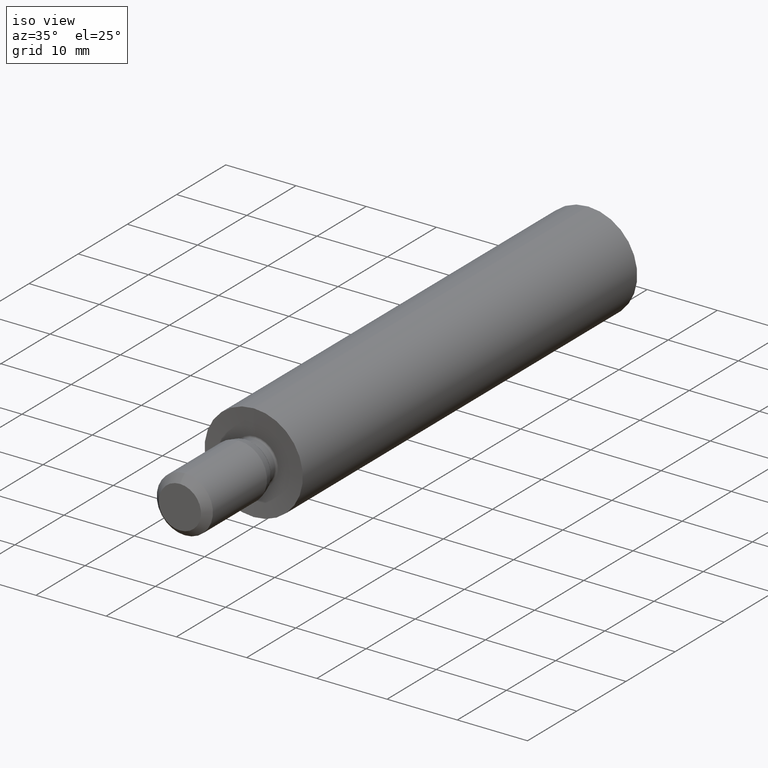
[diagram: clean part render]
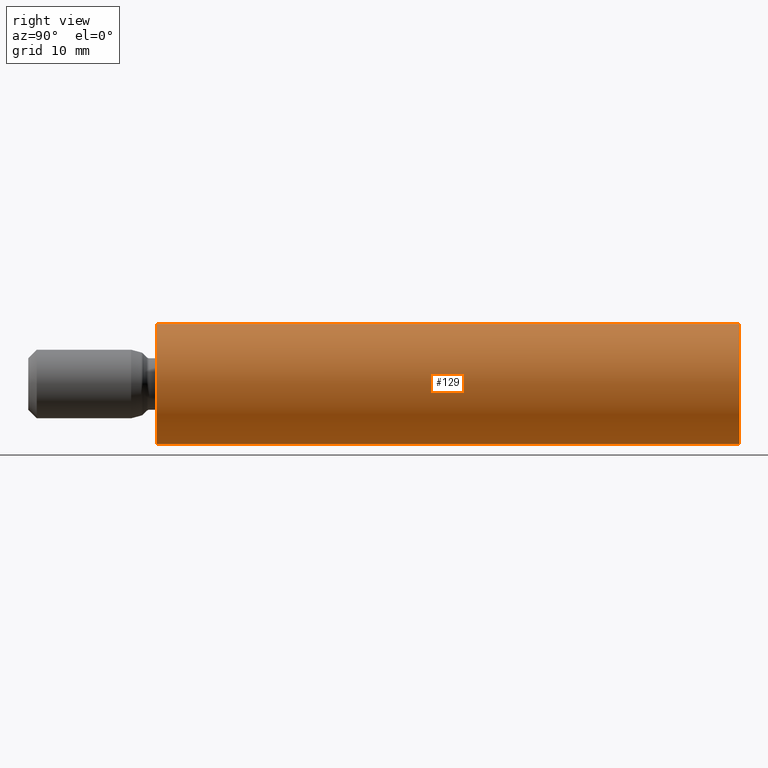
[diagram: tour spotlight — one face highlighted and labeled with its STEP entity id]
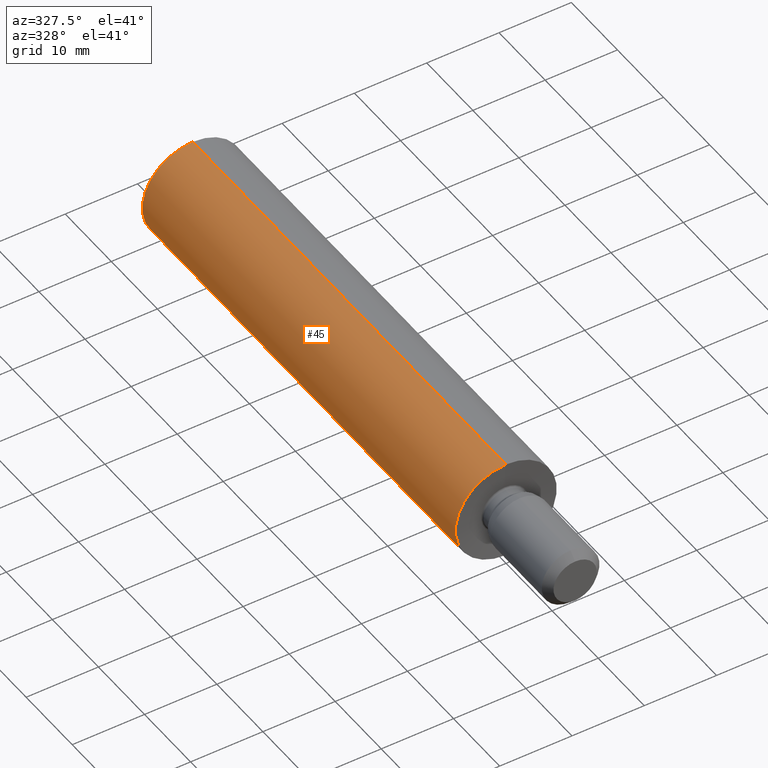
[diagram: tour spotlight — one face highlighted and labeled with its STEP entity id]
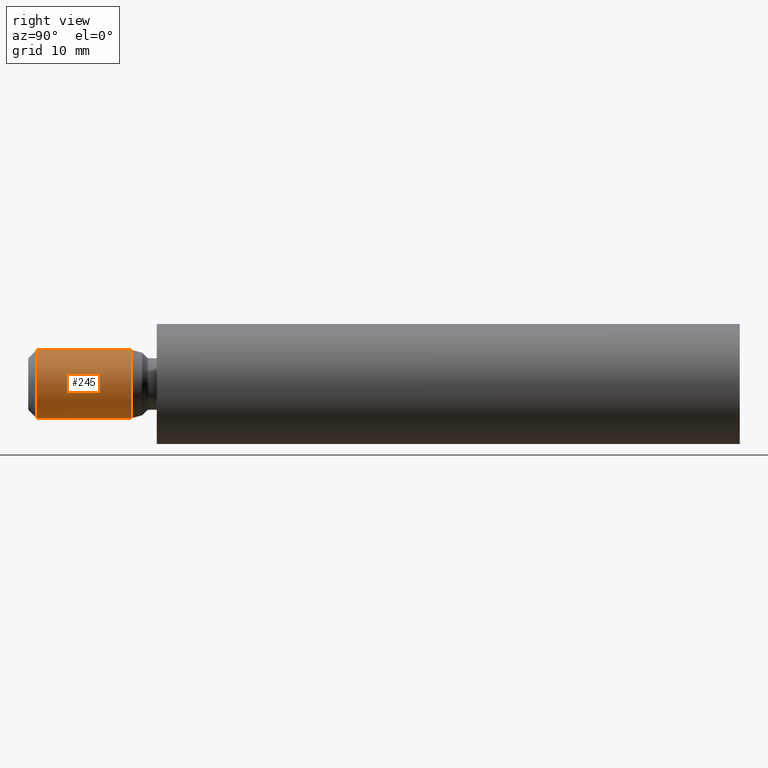
[diagram: tour spotlight — one face highlighted and labeled with its STEP entity id]
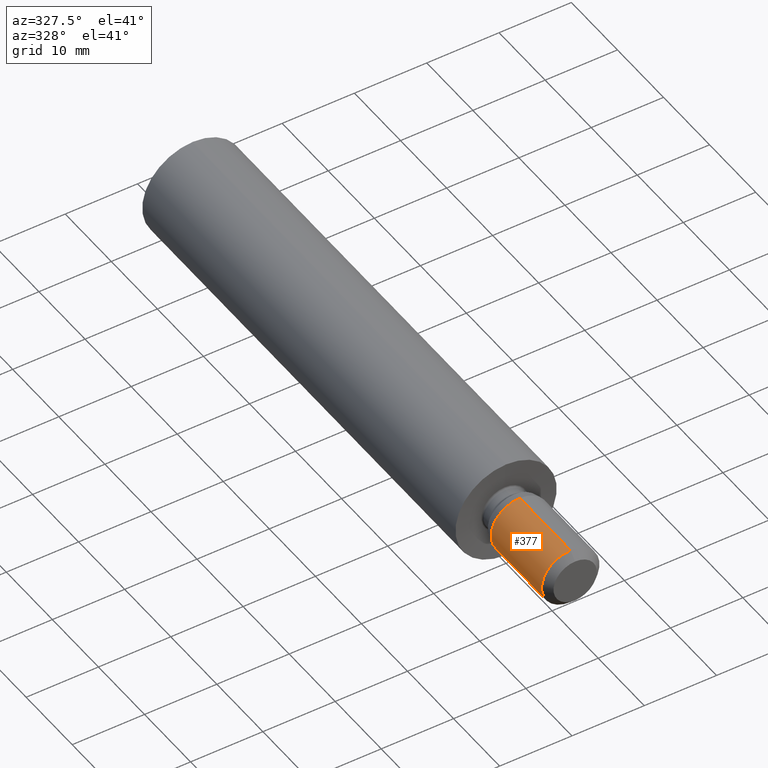
[diagram: tour spotlight — one face highlighted and labeled with its STEP entity id]
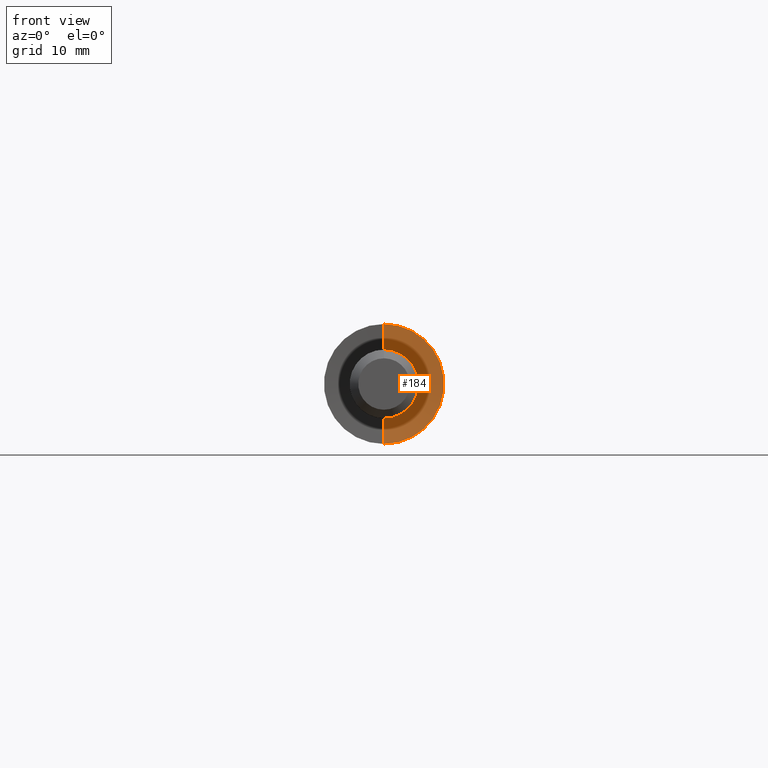
[diagram: tour spotlight — one face highlighted and labeled with its STEP entity id]
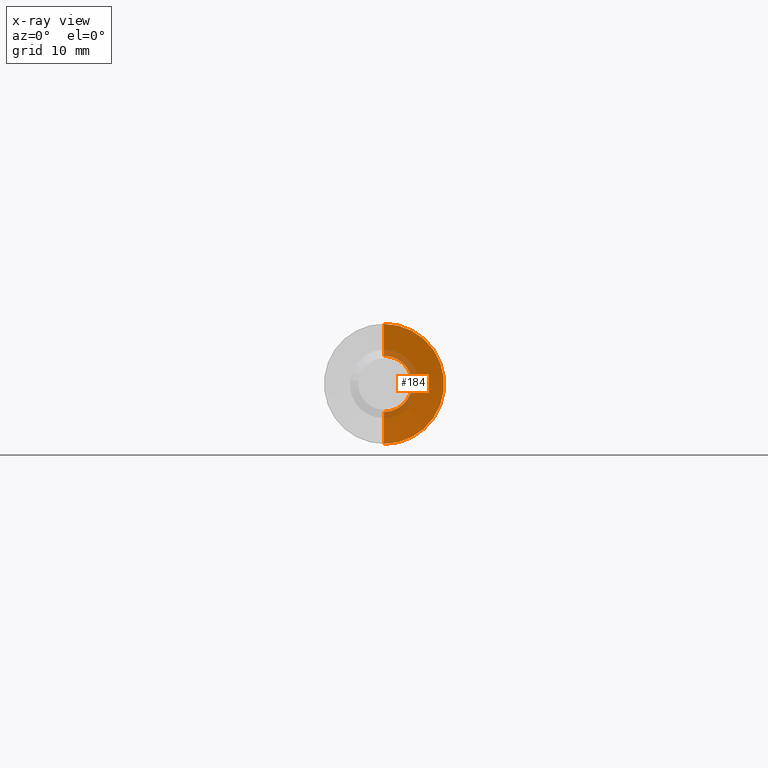
[diagram: x-ray of the same camera — body ghosted, this tour face saturated]
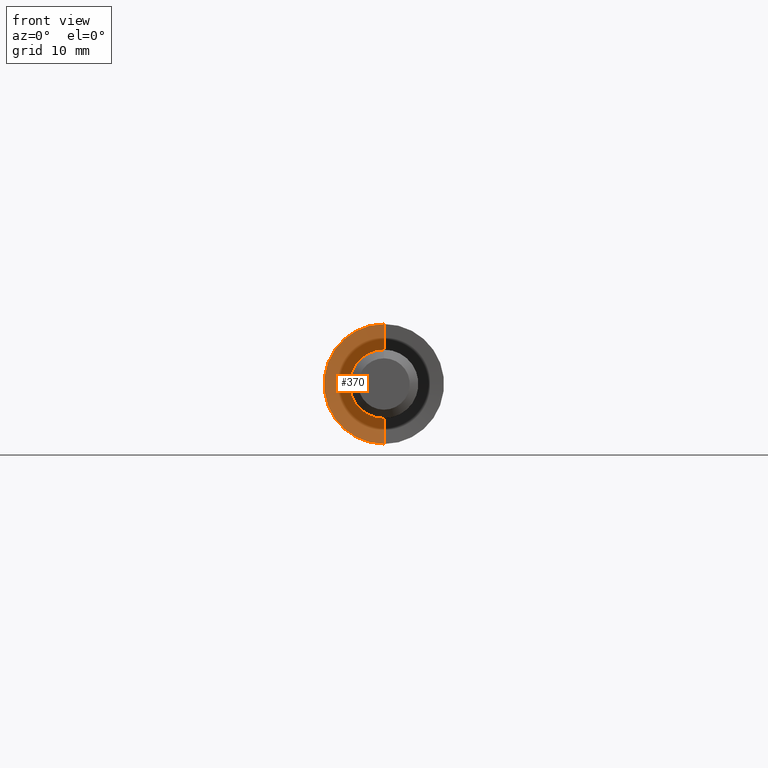
[diagram: tour spotlight — one face highlighted and labeled with its STEP entity id]
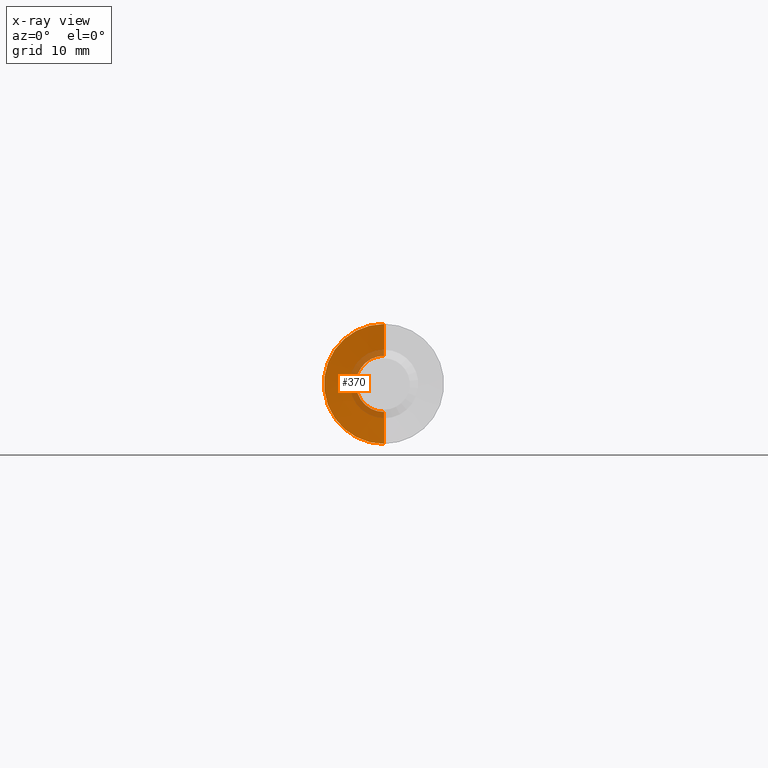
[diagram: x-ray of the same camera — body ghosted, this tour face saturated]
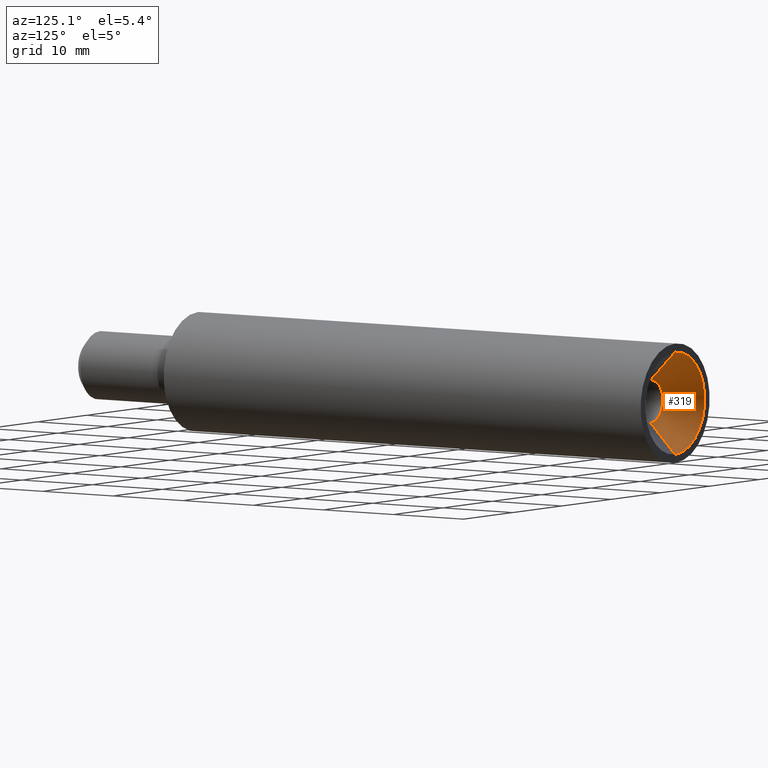
[diagram: tour spotlight — one face highlighted and labeled with its STEP entity id]
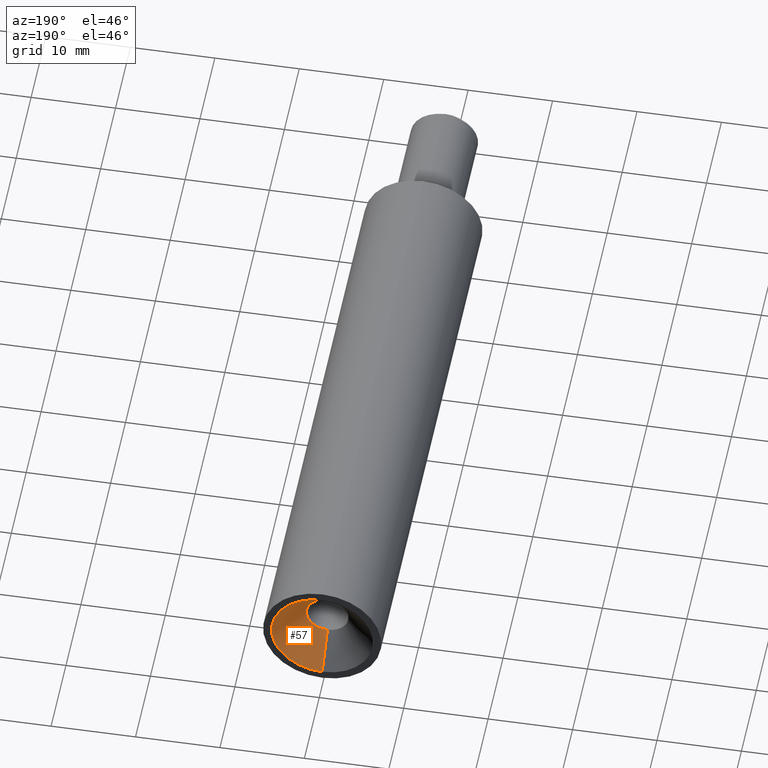
[diagram: tour spotlight — one face highlighted and labeled with its STEP entity id]
A machine part: a face-by-face anatomy tour. The part has 30 B-rep faces; the first image is the clean iso view, then the 8 largest visible faces are spotlighted one at a time (largest first), each with its STEP entity span.

Face 1 — right view, entity #129. In plain terms, the highlighted cylindrical surface (partial cylindrical patch) has radius 7 mm, axis along (-0, -1, -0).
Definition (entity closure, byte-faithful):
#5 = CIRCLE ( 'NONE', #180, 7.000000000000000000 ) ;
#41 = ORIENTED_EDGE ( 'NONE', *, *, #274, .F. ) ;
#53 = ORIENTED_EDGE ( 'NONE', *, *, #613, .T. ) ;
#71 = DIRECTION ( 'NONE',  ( -0.0000000000000000000, -1.000000000000000000, -0.0000000000000000000 ) ) ;
#77 = CARTESIAN_POINT ( 'NONE',  ( 0.0000000000000000000, 68.00000000000000000, 0.0000000000000000000 ) ) ;
#79 = EDGE_CURVE ( 'NONE', #233, #333, #322, .T. ) ;
#80 = CARTESIAN_POINT ( 'NONE',  ( 0.0000000000000000000, 68.00000000000000000, -7.000000000000000000 ) ) ;
#117 = EDGE_LOOP ( 'NONE', ( #161, #53, #41, #226 ) ) ;
#129 = ADVANCED_FACE ( 'NONE', ( #403 ), #745, .T. ) ;
#134 = CARTESIAN_POINT ( 'NONE',  ( 8.572527594031473200E-016, 68.00000000000000000, 7.000000000000000000 ) ) ;
#159 = CARTESIAN_POINT ( 'NONE',  ( 0.0000000000000000000, -9.860761315262647600E-029, 0.0000000000000000000 ) ) ;
#161 = ORIENTED_EDGE ( 'NONE', *, *, #597, .T. ) ;
#180 = AXIS2_PLACEMENT_3D ( 'NONE', #77, #201, #260 ) ;
#201 = DIRECTION ( 'NONE',  ( -0.0000000000000000000, -1.000000000000000000, -0.0000000000000000000 ) ) ;
#221 = DIRECTION ( 'NONE',  ( 0.0000000000000000000, 0.0000000000000000000, -1.000000000000000000 ) ) ;
#226 = ORIENTED_EDGE ( 'NONE', *, *, #79, .F. ) ;
#233 = VERTEX_POINT ( 'NONE', #80 ) ;
#260 = DIRECTION ( 'NONE',  ( 0.0000000000000000000, 0.0000000000000000000, -1.000000000000000000 ) ) ;
#268 = VECTOR ( 'NONE', #718, 1000.000000000000000 ) ;
#274 = EDGE_CURVE ( 'NONE', #333, #406, #401, .T. ) ;
#300 = CARTESIAN_POINT ( 'NONE',  ( 0.0000000000000000000, -9.860761315262647600E-029, -6.999999999999997300 ) ) ;
#322 = LINE ( 'NONE', #397, #268 ) ;
#333 = VERTEX_POINT ( 'NONE', #300 ) ;
#348 = AXIS2_PLACEMENT_3D ( 'NONE', #601, #612, #785 ) ;
#397 = CARTESIAN_POINT ( 'NONE',  ( 0.0000000000000000000, 0.0000000000000000000, -7.000000000000000000 ) ) ;
#401 = CIRCLE ( 'NONE', #631, 7.000000000000000000 ) ;
#403 = FACE_OUTER_BOUND ( 'NONE', #117, .T. ) ;
#406 = VERTEX_POINT ( 'NONE', #682 ) ;
#417 = LINE ( 'NONE', #593, #674 ) ;
#531 = VERTEX_POINT ( 'NONE', #134 ) ;
#593 = CARTESIAN_POINT ( 'NONE',  ( 8.572527594031473200E-016, 0.0000000000000000000, 7.000000000000000000 ) ) ;
#597 = EDGE_CURVE ( 'NONE', #233, #531, #5, .T. ) ;
#601 = CARTESIAN_POINT ( 'NONE',  ( 0.0000000000000000000, 0.0000000000000000000, 0.0000000000000000000 ) ) ;
#606 = DIRECTION ( 'NONE',  ( -0.0000000000000000000, -1.000000000000000000, -0.0000000000000000000 ) ) ;
#612 = DIRECTION ( 'NONE',  ( -0.0000000000000000000, -1.000000000000000000, -0.0000000000000000000 ) ) ;
#613 = EDGE_CURVE ( 'NONE', #531, #406, #417, .T. ) ;
#631 = AXIS2_PLACEMENT_3D ( 'NONE', #159, #606, #221 ) ;
#674 = VECTOR ( 'NONE', #71, 1000.000000000000000 ) ;
#682 = CARTESIAN_POINT ( 'NONE',  ( 8.572527594031469200E-016, -9.860761315262647600E-029, 6.999999999999997300 ) ) ;
#718 = DIRECTION ( 'NONE',  ( -0.0000000000000000000, -1.000000000000000000, -0.0000000000000000000 ) ) ;
#745 = CYLINDRICAL_SURFACE ( 'NONE', #348, 7.000000000000000000 ) ;
#785 = DIRECTION ( 'NONE',  ( 0.0000000000000000000, 0.0000000000000000000, -1.000000000000000000 ) ) ;

Face 2 — auxiliary view, entity #45. In plain terms, the highlighted cylindrical surface (partial cylindrical patch) has radius 7 mm, axis along (-0, -1, -0).
Definition (entity closure, byte-faithful):
#43 = CARTESIAN_POINT ( 'NONE',  ( 0.0000000000000000000, -9.860761315262647600E-029, 0.0000000000000000000 ) ) ;
#45 = ADVANCED_FACE ( 'NONE', ( #443 ), #232, .T. ) ;
#71 = DIRECTION ( 'NONE',  ( -0.0000000000000000000, -1.000000000000000000, -0.0000000000000000000 ) ) ;
#79 = EDGE_CURVE ( 'NONE', #233, #333, #322, .T. ) ;
#80 = CARTESIAN_POINT ( 'NONE',  ( 0.0000000000000000000, 68.00000000000000000, -7.000000000000000000 ) ) ;
#123 = DIRECTION ( 'NONE',  ( -0.0000000000000000000, -1.000000000000000000, -0.0000000000000000000 ) ) ;
#134 = CARTESIAN_POINT ( 'NONE',  ( 8.572527594031473200E-016, 68.00000000000000000, 7.000000000000000000 ) ) ;
#186 = DIRECTION ( 'NONE',  ( 0.0000000000000000000, 0.0000000000000000000, -1.000000000000000000 ) ) ;
#232 = CYLINDRICAL_SURFACE ( 'NONE', #236, 7.000000000000000000 ) ;
#233 = VERTEX_POINT ( 'NONE', #80 ) ;
#236 = AXIS2_PLACEMENT_3D ( 'NONE', #646, #589, #777 ) ;
#247 = CIRCLE ( 'NONE', #788, 7.000000000000000000 ) ;
#252 = ORIENTED_EDGE ( 'NONE', *, *, #613, .F. ) ;
#268 = VECTOR ( 'NONE', #718, 1000.000000000000000 ) ;
#272 = ORIENTED_EDGE ( 'NONE', *, *, #491, .T. ) ;
#300 = CARTESIAN_POINT ( 'NONE',  ( 0.0000000000000000000, -9.860761315262647600E-029, -6.999999999999997300 ) ) ;
#321 = CARTESIAN_POINT ( 'NONE',  ( 0.0000000000000000000, 68.00000000000000000, 0.0000000000000000000 ) ) ;
#322 = LINE ( 'NONE', #397, #268 ) ;
#332 = ORIENTED_EDGE ( 'NONE', *, *, #446, .F. ) ;
#333 = VERTEX_POINT ( 'NONE', #300 ) ;
#397 = CARTESIAN_POINT ( 'NONE',  ( 0.0000000000000000000, 0.0000000000000000000, -7.000000000000000000 ) ) ;
#406 = VERTEX_POINT ( 'NONE', #682 ) ;
#417 = LINE ( 'NONE', #593, #674 ) ;
#443 = FACE_OUTER_BOUND ( 'NONE', #679, .T. ) ;
#446 = EDGE_CURVE ( 'NONE', #406, #333, #247, .T. ) ;
#484 = ORIENTED_EDGE ( 'NONE', *, *, #79, .T. ) ;
#491 = EDGE_CURVE ( 'NONE', #531, #233, #815, .T. ) ;
#511 = AXIS2_PLACEMENT_3D ( 'NONE', #321, #123, #574 ) ;
#531 = VERTEX_POINT ( 'NONE', #134 ) ;
#574 = DIRECTION ( 'NONE',  ( 0.0000000000000000000, 0.0000000000000000000, -1.000000000000000000 ) ) ;
#589 = DIRECTION ( 'NONE',  ( -0.0000000000000000000, -1.000000000000000000, -0.0000000000000000000 ) ) ;
#593 = CARTESIAN_POINT ( 'NONE',  ( 8.572527594031473200E-016, 0.0000000000000000000, 7.000000000000000000 ) ) ;
#613 = EDGE_CURVE ( 'NONE', #531, #406, #417, .T. ) ;
#646 = CARTESIAN_POINT ( 'NONE',  ( 0.0000000000000000000, 0.0000000000000000000, 0.0000000000000000000 ) ) ;
#674 = VECTOR ( 'NONE', #71, 1000.000000000000000 ) ;
#679 = EDGE_LOOP ( 'NONE', ( #252, #272, #484, #332 ) ) ;
#682 = CARTESIAN_POINT ( 'NONE',  ( 8.572527594031469200E-016, -9.860761315262647600E-029, 6.999999999999997300 ) ) ;
#708 = DIRECTION ( 'NONE',  ( -0.0000000000000000000, -1.000000000000000000, -0.0000000000000000000 ) ) ;
#718 = DIRECTION ( 'NONE',  ( -0.0000000000000000000, -1.000000000000000000, -0.0000000000000000000 ) ) ;
#777 = DIRECTION ( 'NONE',  ( 0.0000000000000000000, 0.0000000000000000000, -1.000000000000000000 ) ) ;
#788 = AXIS2_PLACEMENT_3D ( 'NONE', #43, #708, #186 ) ;
#815 = CIRCLE ( 'NONE', #511, 7.000000000000000000 ) ;

Face 3 — right view, entity #245. In plain terms, the highlighted cylindrical surface (edge-blend (fillet) strip) has radius 4 mm, axis along (-0, -1, -0).
Definition (entity closure, byte-faithful):
#126 = CIRCLE ( 'NONE', #187, 4.000000000000000000 ) ;
#131 = EDGE_CURVE ( 'NONE', #461, #160, #248, .T. ) ;
#152 = DIRECTION ( 'NONE',  ( -0.0000000000000000000, -1.000000000000000000, -0.0000000000000000000 ) ) ;
#160 = VERTEX_POINT ( 'NONE', #543 ) ;
#166 = ORIENTED_EDGE ( 'NONE', *, *, #131, .T. ) ;
#168 = DIRECTION ( 'NONE',  ( 0.0000000000000000000, 0.0000000000000000000, -1.000000000000000000 ) ) ;
#174 = CARTESIAN_POINT ( 'NONE',  ( 0.0000000000000000000, -13.99999999999999800, 0.0000000000000000000 ) ) ;
#181 = AXIS2_PLACEMENT_3D ( 'NONE', #213, #739, #673 ) ;
#187 = AXIS2_PLACEMENT_3D ( 'NONE', #174, #565, #168 ) ;
#213 = CARTESIAN_POINT ( 'NONE',  ( 0.0000000000000000000, 0.0000000000000000000, 0.0000000000000000000 ) ) ;
#240 = EDGE_LOOP ( 'NONE', ( #513, #166, #374, #542 ) ) ;
#244 = EDGE_CURVE ( 'NONE', #793, #762, #790, .T. ) ;
#245 = ADVANCED_FACE ( 'NONE', ( #380 ), #724, .T. ) ;
#248 = LINE ( 'NONE', #732, #576 ) ;
#317 = CARTESIAN_POINT ( 'NONE',  ( 4.898587196589412800E-016, -3.000000000000000000, 4.000000000000000000 ) ) ;
#334 = EDGE_CURVE ( 'NONE', #762, #160, #126, .T. ) ;
#356 = EDGE_CURVE ( 'NONE', #793, #461, #505, .T. ) ;
#363 = AXIS2_PLACEMENT_3D ( 'NONE', #625, #554, #434 ) ;
#374 = ORIENTED_EDGE ( 'NONE', *, *, #334, .F. ) ;
#380 = FACE_OUTER_BOUND ( 'NONE', #240, .T. ) ;
#420 = CARTESIAN_POINT ( 'NONE',  ( 4.898587196589412800E-016, -13.99999999999999800, -4.000000000000000000 ) ) ;
#434 = DIRECTION ( 'NONE',  ( 0.0000000000000000000, 0.0000000000000000000, -1.000000000000000000 ) ) ;
#461 = VERTEX_POINT ( 'NONE', #317 ) ;
#496 = VECTOR ( 'NONE', #152, 1000.000000000000000 ) ;
#505 = CIRCLE ( 'NONE', #363, 4.000000000000000000 ) ;
#513 = ORIENTED_EDGE ( 'NONE', *, *, #356, .T. ) ;
#535 = CARTESIAN_POINT ( 'NONE',  ( 0.0000000000000000000, 0.0000000000000000000, -4.000000000000000000 ) ) ;
#542 = ORIENTED_EDGE ( 'NONE', *, *, #244, .F. ) ;
#543 = CARTESIAN_POINT ( 'NONE',  ( 0.0000000000000000000, -13.99999999999999800, 4.000000000000000000 ) ) ;
#545 = DIRECTION ( 'NONE',  ( -0.0000000000000000000, -1.000000000000000000, -0.0000000000000000000 ) ) ;
#554 = DIRECTION ( 'NONE',  ( -0.0000000000000000000, -1.000000000000000000, -0.0000000000000000000 ) ) ;
#565 = DIRECTION ( 'NONE',  ( -0.0000000000000000000, -1.000000000000000000, -0.0000000000000000000 ) ) ;
#576 = VECTOR ( 'NONE', #545, 1000.000000000000000 ) ;
#625 = CARTESIAN_POINT ( 'NONE',  ( 0.0000000000000000000, -3.000000000000000000, 0.0000000000000000000 ) ) ;
#673 = DIRECTION ( 'NONE',  ( 0.0000000000000000000, 0.0000000000000000000, -1.000000000000000000 ) ) ;
#724 = CYLINDRICAL_SURFACE ( 'NONE', #181, 4.000000000000000000 ) ;
#732 = CARTESIAN_POINT ( 'NONE',  ( 4.898587196589412800E-016, 0.0000000000000000000, 4.000000000000000000 ) ) ;
#739 = DIRECTION ( 'NONE',  ( -0.0000000000000000000, -1.000000000000000000, -0.0000000000000000000 ) ) ;
#762 = VERTEX_POINT ( 'NONE', #420 ) ;
#790 = LINE ( 'NONE', #535, #496 ) ;
#793 = VERTEX_POINT ( 'NONE', #794 ) ;
#794 = CARTESIAN_POINT ( 'NONE',  ( 0.0000000000000000000, -3.000000000000000000, -4.000000000000000000 ) ) ;

Face 4 — auxiliary view, entity #377. In plain terms, the highlighted cylindrical surface (edge-blend (fillet) strip) has radius 4 mm, axis along (-0, -1, -0).
Definition (entity closure, byte-faithful):
#20 = EDGE_LOOP ( 'NONE', ( #769, #169, #727, #355 ) ) ;
#75 = CARTESIAN_POINT ( 'NONE',  ( 0.0000000000000000000, -13.99999999999999800, 0.0000000000000000000 ) ) ;
#103 = DIRECTION ( 'NONE',  ( 0.0000000000000000000, 0.0000000000000000000, -1.000000000000000000 ) ) ;
#111 = CARTESIAN_POINT ( 'NONE',  ( 0.0000000000000000000, 0.0000000000000000000, 0.0000000000000000000 ) ) ;
#112 = EDGE_CURVE ( 'NONE', #160, #762, #569, .T. ) ;
#131 = EDGE_CURVE ( 'NONE', #461, #160, #248, .T. ) ;
#133 = CARTESIAN_POINT ( 'NONE',  ( 0.0000000000000000000, -3.000000000000000000, 0.0000000000000000000 ) ) ;
#152 = DIRECTION ( 'NONE',  ( -0.0000000000000000000, -1.000000000000000000, -0.0000000000000000000 ) ) ;
#158 = AXIS2_PLACEMENT_3D ( 'NONE', #75, #650, #257 ) ;
#160 = VERTEX_POINT ( 'NONE', #543 ) ;
#169 = ORIENTED_EDGE ( 'NONE', *, *, #476, .T. ) ;
#212 = FACE_OUTER_BOUND ( 'NONE', #20, .T. ) ;
#244 = EDGE_CURVE ( 'NONE', #793, #762, #790, .T. ) ;
#248 = LINE ( 'NONE', #732, #576 ) ;
#253 = DIRECTION ( 'NONE',  ( -0.0000000000000000000, -1.000000000000000000, -0.0000000000000000000 ) ) ;
#257 = DIRECTION ( 'NONE',  ( 0.0000000000000000000, 0.0000000000000000000, -1.000000000000000000 ) ) ;
#317 = CARTESIAN_POINT ( 'NONE',  ( 4.898587196589412800E-016, -3.000000000000000000, 4.000000000000000000 ) ) ;
#355 = ORIENTED_EDGE ( 'NONE', *, *, #112, .F. ) ;
#377 = ADVANCED_FACE ( 'NONE', ( #212 ), #457, .T. ) ;
#420 = CARTESIAN_POINT ( 'NONE',  ( 4.898587196589412800E-016, -13.99999999999999800, -4.000000000000000000 ) ) ;
#456 = AXIS2_PLACEMENT_3D ( 'NONE', #133, #253, #703 ) ;
#457 = CYLINDRICAL_SURFACE ( 'NONE', #750, 4.000000000000000000 ) ;
#461 = VERTEX_POINT ( 'NONE', #317 ) ;
#476 = EDGE_CURVE ( 'NONE', #461, #793, #528, .T. ) ;
#496 = VECTOR ( 'NONE', #152, 1000.000000000000000 ) ;
#500 = DIRECTION ( 'NONE',  ( -0.0000000000000000000, -1.000000000000000000, -0.0000000000000000000 ) ) ;
#528 = CIRCLE ( 'NONE', #456, 4.000000000000000000 ) ;
#535 = CARTESIAN_POINT ( 'NONE',  ( 0.0000000000000000000, 0.0000000000000000000, -4.000000000000000000 ) ) ;
#543 = CARTESIAN_POINT ( 'NONE',  ( 0.0000000000000000000, -13.99999999999999800, 4.000000000000000000 ) ) ;
#545 = DIRECTION ( 'NONE',  ( -0.0000000000000000000, -1.000000000000000000, -0.0000000000000000000 ) ) ;
#569 = CIRCLE ( 'NONE', #158, 4.000000000000000000 ) ;
#576 = VECTOR ( 'NONE', #545, 1000.000000000000000 ) ;
#650 = DIRECTION ( 'NONE',  ( -0.0000000000000000000, -1.000000000000000000, -0.0000000000000000000 ) ) ;
#703 = DIRECTION ( 'NONE',  ( 0.0000000000000000000, 0.0000000000000000000, -1.000000000000000000 ) ) ;
#727 = ORIENTED_EDGE ( 'NONE', *, *, #244, .T. ) ;
#732 = CARTESIAN_POINT ( 'NONE',  ( 4.898587196589412800E-016, 0.0000000000000000000, 4.000000000000000000 ) ) ;
#750 = AXIS2_PLACEMENT_3D ( 'NONE', #111, #500, #103 ) ;
#762 = VERTEX_POINT ( 'NONE', #420 ) ;
#769 = ORIENTED_EDGE ( 'NONE', *, *, #131, .F. ) ;
#790 = LINE ( 'NONE', #535, #496 ) ;
#793 = VERTEX_POINT ( 'NONE', #794 ) ;
#794 = CARTESIAN_POINT ( 'NONE',  ( 0.0000000000000000000, -3.000000000000000000, -4.000000000000000000 ) ) ;

Face 5 — front view, entity #184. An x-ray twin of the same camera follows (body ghosted, this face saturated) — the face is partly hidden behind the body. In plain terms, the highlighted conical surface has half-angle 85 deg.
Definition (entity closure, byte-faithful):
#13 = DIRECTION ( 'NONE',  ( 0.0000000000000000000, -0.08715574274765149100, -0.9961946980917461000 ) ) ;
#19 = CARTESIAN_POINT ( 'NONE',  ( 4.006785847574703800E-016, 0.3261762033592892100, 3.271788935686913200 ) ) ;
#37 = AXIS2_PLACEMENT_3D ( 'NONE', #792, #787, #278 ) ;
#159 = CARTESIAN_POINT ( 'NONE',  ( 0.0000000000000000000, -9.860761315262647600E-029, 0.0000000000000000000 ) ) ;
#176 = CIRCLE ( 'NONE', #220, 3.271788935686913200 ) ;
#184 = ADVANCED_FACE ( 'NONE', ( #791 ), #702, .F. ) ;
#217 = ORIENTED_EDGE ( 'NONE', *, *, #796, .F. ) ;
#220 = AXIS2_PLACEMENT_3D ( 'NONE', #663, #562, #615 ) ;
#221 = DIRECTION ( 'NONE',  ( 0.0000000000000000000, 0.0000000000000000000, -1.000000000000000000 ) ) ;
#228 = DIRECTION ( 'NONE',  ( 1.219986648345620700E-016, -0.08715574274765149100, 0.9961946980917461000 ) ) ;
#258 = ORIENTED_EDGE ( 'NONE', *, *, #274, .T. ) ;
#274 = EDGE_CURVE ( 'NONE', #333, #406, #401, .T. ) ;
#278 = DIRECTION ( 'NONE',  ( 0.0000000000000000000, 0.0000000000000000000, -1.000000000000000000 ) ) ;
#300 = CARTESIAN_POINT ( 'NONE',  ( 0.0000000000000000000, -9.860761315262647600E-029, -6.999999999999997300 ) ) ;
#309 = EDGE_CURVE ( 'NONE', #696, #406, #619, .T. ) ;
#333 = VERTEX_POINT ( 'NONE', #300 ) ;
#342 = EDGE_LOOP ( 'NONE', ( #668, #217, #811, #258 ) ) ;
#344 = CARTESIAN_POINT ( 'NONE',  ( 0.0000000000000000000, 0.3261762033592892100, -3.271788935686913200 ) ) ;
#400 = VECTOR ( 'NONE', #13, 1000.000000000000000 ) ;
#401 = CIRCLE ( 'NONE', #631, 7.000000000000000000 ) ;
#406 = VERTEX_POINT ( 'NONE', #682 ) ;
#475 = CARTESIAN_POINT ( 'NONE',  ( 0.0000000000000000000, 0.3261762033592892100, -3.271788935686914100 ) ) ;
#562 = DIRECTION ( 'NONE',  ( -0.0000000000000000000, -1.000000000000000000, -0.0000000000000000000 ) ) ;
#606 = DIRECTION ( 'NONE',  ( -0.0000000000000000000, -1.000000000000000000, -0.0000000000000000000 ) ) ;
#615 = DIRECTION ( 'NONE',  ( 0.0000000000000000000, 0.0000000000000000000, -1.000000000000000000 ) ) ;
#619 = LINE ( 'NONE', #19, #825 ) ;
#631 = AXIS2_PLACEMENT_3D ( 'NONE', #159, #606, #221 ) ;
#633 = LINE ( 'NONE', #344, #400 ) ;
#663 = CARTESIAN_POINT ( 'NONE',  ( 0.0000000000000000000, 0.3261762033592892100, 0.0000000000000000000 ) ) ;
#668 = ORIENTED_EDGE ( 'NONE', *, *, #309, .F. ) ;
#682 = CARTESIAN_POINT ( 'NONE',  ( 8.572527594031469200E-016, -9.860761315262647600E-029, 6.999999999999997300 ) ) ;
#696 = VERTEX_POINT ( 'NONE', #728 ) ;
#697 = EDGE_CURVE ( 'NONE', #766, #333, #633, .T. ) ;
#702 = CONICAL_SURFACE ( 'NONE', #37, 3.271788935686913200, 1.483529864195186800 ) ;
#728 = CARTESIAN_POINT ( 'NONE',  ( 4.006785847574704800E-016, 0.3261762033592892100, 3.271788935686914100 ) ) ;
#766 = VERTEX_POINT ( 'NONE', #475 ) ;
#787 = DIRECTION ( 'NONE',  ( -0.0000000000000000000, -1.000000000000000000, -0.0000000000000000000 ) ) ;
#791 = FACE_OUTER_BOUND ( 'NONE', #342, .T. ) ;
#792 = CARTESIAN_POINT ( 'NONE',  ( 0.0000000000000000000, 0.3261762033592892100, 0.0000000000000000000 ) ) ;
#796 = EDGE_CURVE ( 'NONE', #766, #696, #176, .T. ) ;
#811 = ORIENTED_EDGE ( 'NONE', *, *, #697, .T. ) ;
#825 = VECTOR ( 'NONE', #228, 1000.000000000000000 ) ;

Face 6 — front view, entity #370. An x-ray twin of the same camera follows (body ghosted, this face saturated) — the face is partly hidden behind the body. In plain terms, the highlighted conical surface has half-angle 85 deg.
Definition (entity closure, byte-faithful):
#13 = DIRECTION ( 'NONE',  ( 0.0000000000000000000, -0.08715574274765149100, -0.9961946980917461000 ) ) ;
#19 = CARTESIAN_POINT ( 'NONE',  ( 4.006785847574703800E-016, 0.3261762033592892100, 3.271788935686913200 ) ) ;
#43 = CARTESIAN_POINT ( 'NONE',  ( 0.0000000000000000000, -9.860761315262647600E-029, 0.0000000000000000000 ) ) ;
#61 = DIRECTION ( 'NONE',  ( 0.0000000000000000000, 0.0000000000000000000, -1.000000000000000000 ) ) ;
#64 = EDGE_CURVE ( 'NONE', #696, #766, #810, .T. ) ;
#69 = ORIENTED_EDGE ( 'NONE', *, *, #446, .T. ) ;
#92 = ORIENTED_EDGE ( 'NONE', *, *, #697, .F. ) ;
#93 = AXIS2_PLACEMENT_3D ( 'NONE', #596, #394, #61 ) ;
#186 = DIRECTION ( 'NONE',  ( 0.0000000000000000000, 0.0000000000000000000, -1.000000000000000000 ) ) ;
#202 = AXIS2_PLACEMENT_3D ( 'NONE', #744, #492, #803 ) ;
#228 = DIRECTION ( 'NONE',  ( 1.219986648345620700E-016, -0.08715574274765149100, 0.9961946980917461000 ) ) ;
#247 = CIRCLE ( 'NONE', #788, 7.000000000000000000 ) ;
#300 = CARTESIAN_POINT ( 'NONE',  ( 0.0000000000000000000, -9.860761315262647600E-029, -6.999999999999997300 ) ) ;
#309 = EDGE_CURVE ( 'NONE', #696, #406, #619, .T. ) ;
#333 = VERTEX_POINT ( 'NONE', #300 ) ;
#344 = CARTESIAN_POINT ( 'NONE',  ( 0.0000000000000000000, 0.3261762033592892100, -3.271788935686913200 ) ) ;
#370 = ADVANCED_FACE ( 'NONE', ( #782 ), #450, .F. ) ;
#381 = EDGE_LOOP ( 'NONE', ( #753, #746, #69, #92 ) ) ;
#394 = DIRECTION ( 'NONE',  ( -0.0000000000000000000, -1.000000000000000000, -0.0000000000000000000 ) ) ;
#400 = VECTOR ( 'NONE', #13, 1000.000000000000000 ) ;
#406 = VERTEX_POINT ( 'NONE', #682 ) ;
#446 = EDGE_CURVE ( 'NONE', #406, #333, #247, .T. ) ;
#450 = CONICAL_SURFACE ( 'NONE', #202, 3.271788935686913200, 1.483529864195186800 ) ;
#475 = CARTESIAN_POINT ( 'NONE',  ( 0.0000000000000000000, 0.3261762033592892100, -3.271788935686914100 ) ) ;
#492 = DIRECTION ( 'NONE',  ( -0.0000000000000000000, -1.000000000000000000, -0.0000000000000000000 ) ) ;
#596 = CARTESIAN_POINT ( 'NONE',  ( 0.0000000000000000000, 0.3261762033592892100, 0.0000000000000000000 ) ) ;
#619 = LINE ( 'NONE', #19, #825 ) ;
#633 = LINE ( 'NONE', #344, #400 ) ;
#682 = CARTESIAN_POINT ( 'NONE',  ( 8.572527594031469200E-016, -9.860761315262647600E-029, 6.999999999999997300 ) ) ;
#696 = VERTEX_POINT ( 'NONE', #728 ) ;
#697 = EDGE_CURVE ( 'NONE', #766, #333, #633, .T. ) ;
#708 = DIRECTION ( 'NONE',  ( -0.0000000000000000000, -1.000000000000000000, -0.0000000000000000000 ) ) ;
#728 = CARTESIAN_POINT ( 'NONE',  ( 4.006785847574704800E-016, 0.3261762033592892100, 3.271788935686914100 ) ) ;
#744 = CARTESIAN_POINT ( 'NONE',  ( 0.0000000000000000000, 0.3261762033592892100, 0.0000000000000000000 ) ) ;
#746 = ORIENTED_EDGE ( 'NONE', *, *, #309, .T. ) ;
#753 = ORIENTED_EDGE ( 'NONE', *, *, #64, .F. ) ;
#766 = VERTEX_POINT ( 'NONE', #475 ) ;
#782 = FACE_OUTER_BOUND ( 'NONE', #381, .T. ) ;
#788 = AXIS2_PLACEMENT_3D ( 'NONE', #43, #708, #186 ) ;
#803 = DIRECTION ( 'NONE',  ( 0.0000000000000000000, 0.0000000000000000000, -1.000000000000000000 ) ) ;
#810 = CIRCLE ( 'NONE', #93, 3.271788935686913200 ) ;
#825 = VECTOR ( 'NONE', #228, 1000.000000000000000 ) ;

Face 7 — auxiliary view, entity #319. In plain terms, the highlighted conical surface has half-angle 45 deg.
Definition (entity closure, byte-faithful):
#25 = CARTESIAN_POINT ( 'NONE',  ( 0.0000000000000000000, 64.50000000000000000, 0.0000000000000000000 ) ) ;
#29 = CARTESIAN_POINT ( 'NONE',  ( 0.0000000000000000000, 68.00000000000000000, 6.000000000000000000 ) ) ;
#38 = CIRCLE ( 'NONE', #540, 6.000000000000000000 ) ;
#44 = AXIS2_PLACEMENT_3D ( 'NONE', #25, #685, #297 ) ;
#78 = FACE_OUTER_BOUND ( 'NONE', #149, .T. ) ;
#83 = CARTESIAN_POINT ( 'NONE',  ( 0.0000000000000000000, 68.00000000000000000, 0.0000000000000000000 ) ) ;
#85 = DIRECTION ( 'NONE',  ( -0.0000000000000000000, 1.000000000000000000, -0.0000000000000000000 ) ) ;
#94 = CARTESIAN_POINT ( 'NONE',  ( 7.347880794884119700E-016, 68.00000000000000000, -6.000000000000000000 ) ) ;
#115 = ORIENTED_EDGE ( 'NONE', *, *, #393, .F. ) ;
#130 = ORIENTED_EDGE ( 'NONE', *, *, #721, .T. ) ;
#149 = EDGE_LOOP ( 'NONE', ( #115, #624, #130, #204 ) ) ;
#204 = ORIENTED_EDGE ( 'NONE', *, *, #368, .F. ) ;
#208 = EDGE_CURVE ( 'NONE', #704, #225, #761, .T. ) ;
#225 = VERTEX_POINT ( 'NONE', #94 ) ;
#275 = CARTESIAN_POINT ( 'NONE',  ( 7.347880794884119700E-016, 68.00000000000000000, -6.000000000000000000 ) ) ;
#293 = CARTESIAN_POINT ( 'NONE',  ( 0.0000000000000000000, 68.00000000000000000, 0.0000000000000000000 ) ) ;
#297 = DIRECTION ( 'NONE',  ( 0.0000000000000000000, 0.0000000000000000000, 1.000000000000000000 ) ) ;
#319 = ADVANCED_FACE ( 'NONE', ( #78 ), #629, .F. ) ;
#320 = VECTOR ( 'NONE', #557, 1000.000000000000000 ) ;
#329 = CIRCLE ( 'NONE', #44, 2.499999999999997300 ) ;
#345 = DIRECTION ( 'NONE',  ( 8.659560562354931600E-017, 0.7071067811865475700, -0.7071067811865474600 ) ) ;
#368 = EDGE_CURVE ( 'NONE', #765, #669, #538, .T. ) ;
#393 = EDGE_CURVE ( 'NONE', #704, #765, #329, .T. ) ;
#431 = DIRECTION ( 'NONE',  ( 0.0000000000000000000, 0.0000000000000000000, 1.000000000000000000 ) ) ;
#478 = CARTESIAN_POINT ( 'NONE',  ( 5.204748896376249700E-016, 64.50000000000000000, -2.499999999999997300 ) ) ;
#538 = LINE ( 'NONE', #29, #320 ) ;
#540 = AXIS2_PLACEMENT_3D ( 'NONE', #83, #85, #672 ) ;
#557 = DIRECTION ( 'NONE',  ( 0.0000000000000000000, 0.7071067811865475700, 0.7071067811865474600 ) ) ;
#559 = VECTOR ( 'NONE', #345, 1000.000000000000000 ) ;
#618 = DIRECTION ( 'NONE',  ( -0.0000000000000000000, 1.000000000000000000, -0.0000000000000000000 ) ) ;
#624 = ORIENTED_EDGE ( 'NONE', *, *, #208, .T. ) ;
#629 = CONICAL_SURFACE ( 'NONE', #774, 6.000000000000000000, 0.7853981633974482800 ) ;
#669 = VERTEX_POINT ( 'NONE', #709 ) ;
#672 = DIRECTION ( 'NONE',  ( 0.0000000000000000000, 0.0000000000000000000, 1.000000000000000000 ) ) ;
#685 = DIRECTION ( 'NONE',  ( -0.0000000000000000000, 1.000000000000000000, -0.0000000000000000000 ) ) ;
#704 = VERTEX_POINT ( 'NONE', #478 ) ;
#709 = CARTESIAN_POINT ( 'NONE',  ( 0.0000000000000000000, 68.00000000000000000, 6.000000000000000000 ) ) ;
#721 = EDGE_CURVE ( 'NONE', #225, #669, #38, .T. ) ;
#761 = LINE ( 'NONE', #275, #559 ) ;
#765 = VERTEX_POINT ( 'NONE', #784 ) ;
#774 = AXIS2_PLACEMENT_3D ( 'NONE', #293, #618, #431 ) ;
#784 = CARTESIAN_POINT ( 'NONE',  ( 0.0000000000000000000, 64.50000000000000000, 2.499999999999997300 ) ) ;

Face 8 — auxiliary view, entity #57. In plain terms, the highlighted conical surface has half-angle 45 deg.
Definition (entity closure, byte-faithful):
#1 = DIRECTION ( 'NONE',  ( -0.0000000000000000000, 1.000000000000000000, -0.0000000000000000000 ) ) ;
#29 = CARTESIAN_POINT ( 'NONE',  ( 0.0000000000000000000, 68.00000000000000000, 6.000000000000000000 ) ) ;
#57 = ADVANCED_FACE ( 'NONE', ( #114 ), #711, .F. ) ;
#86 = DIRECTION ( 'NONE',  ( 0.0000000000000000000, 0.0000000000000000000, 1.000000000000000000 ) ) ;
#94 = CARTESIAN_POINT ( 'NONE',  ( 7.347880794884119700E-016, 68.00000000000000000, -6.000000000000000000 ) ) ;
#102 = CIRCLE ( 'NONE', #324, 2.499999999999997300 ) ;
#114 = FACE_OUTER_BOUND ( 'NONE', #241, .T. ) ;
#124 = AXIS2_PLACEMENT_3D ( 'NONE', #720, #525, #259 ) ;
#208 = EDGE_CURVE ( 'NONE', #704, #225, #761, .T. ) ;
#224 = EDGE_CURVE ( 'NONE', #765, #704, #102, .T. ) ;
#225 = VERTEX_POINT ( 'NONE', #94 ) ;
#231 = ORIENTED_EDGE ( 'NONE', *, *, #368, .T. ) ;
#241 = EDGE_LOOP ( 'NONE', ( #551, #444, #231, #482 ) ) ;
#242 = AXIS2_PLACEMENT_3D ( 'NONE', #398, #1, #653 ) ;
#259 = DIRECTION ( 'NONE',  ( 0.0000000000000000000, 0.0000000000000000000, 1.000000000000000000 ) ) ;
#275 = CARTESIAN_POINT ( 'NONE',  ( 7.347880794884119700E-016, 68.00000000000000000, -6.000000000000000000 ) ) ;
#320 = VECTOR ( 'NONE', #557, 1000.000000000000000 ) ;
#324 = AXIS2_PLACEMENT_3D ( 'NONE', #608, #422, #86 ) ;
#345 = DIRECTION ( 'NONE',  ( 8.659560562354931600E-017, 0.7071067811865475700, -0.7071067811865474600 ) ) ;
#368 = EDGE_CURVE ( 'NONE', #765, #669, #538, .T. ) ;
#398 = CARTESIAN_POINT ( 'NONE',  ( 0.0000000000000000000, 68.00000000000000000, 0.0000000000000000000 ) ) ;
#422 = DIRECTION ( 'NONE',  ( -0.0000000000000000000, 1.000000000000000000, -0.0000000000000000000 ) ) ;
#444 = ORIENTED_EDGE ( 'NONE', *, *, #224, .F. ) ;
#478 = CARTESIAN_POINT ( 'NONE',  ( 5.204748896376249700E-016, 64.50000000000000000, -2.499999999999997300 ) ) ;
#482 = ORIENTED_EDGE ( 'NONE', *, *, #651, .T. ) ;
#525 = DIRECTION ( 'NONE',  ( -0.0000000000000000000, 1.000000000000000000, -0.0000000000000000000 ) ) ;
#538 = LINE ( 'NONE', #29, #320 ) ;
#551 = ORIENTED_EDGE ( 'NONE', *, *, #208, .F. ) ;
#557 = DIRECTION ( 'NONE',  ( 0.0000000000000000000, 0.7071067811865475700, 0.7071067811865474600 ) ) ;
#559 = VECTOR ( 'NONE', #345, 1000.000000000000000 ) ;
#594 = CIRCLE ( 'NONE', #242, 6.000000000000000000 ) ;
#608 = CARTESIAN_POINT ( 'NONE',  ( 0.0000000000000000000, 64.50000000000000000, 0.0000000000000000000 ) ) ;
#651 = EDGE_CURVE ( 'NONE', #669, #225, #594, .T. ) ;
#653 = DIRECTION ( 'NONE',  ( 0.0000000000000000000, 0.0000000000000000000, 1.000000000000000000 ) ) ;
#669 = VERTEX_POINT ( 'NONE', #709 ) ;
#704 = VERTEX_POINT ( 'NONE', #478 ) ;
#709 = CARTESIAN_POINT ( 'NONE',  ( 0.0000000000000000000, 68.00000000000000000, 6.000000000000000000 ) ) ;
#711 = CONICAL_SURFACE ( 'NONE', #124, 6.000000000000000000, 0.7853981633974482800 ) ;
#720 = CARTESIAN_POINT ( 'NONE',  ( 0.0000000000000000000, 68.00000000000000000, 0.0000000000000000000 ) ) ;
#761 = LINE ( 'NONE', #275, #559 ) ;
#765 = VERTEX_POINT ( 'NONE', #784 ) ;
#784 = CARTESIAN_POINT ( 'NONE',  ( 0.0000000000000000000, 64.50000000000000000, 2.499999999999997300 ) ) ;